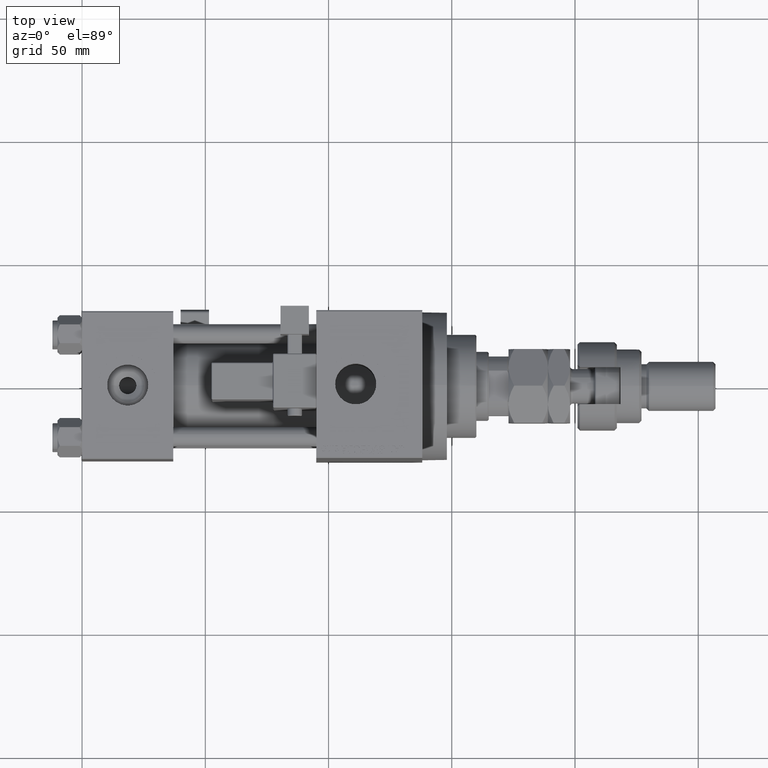
[diagram: clean part render]
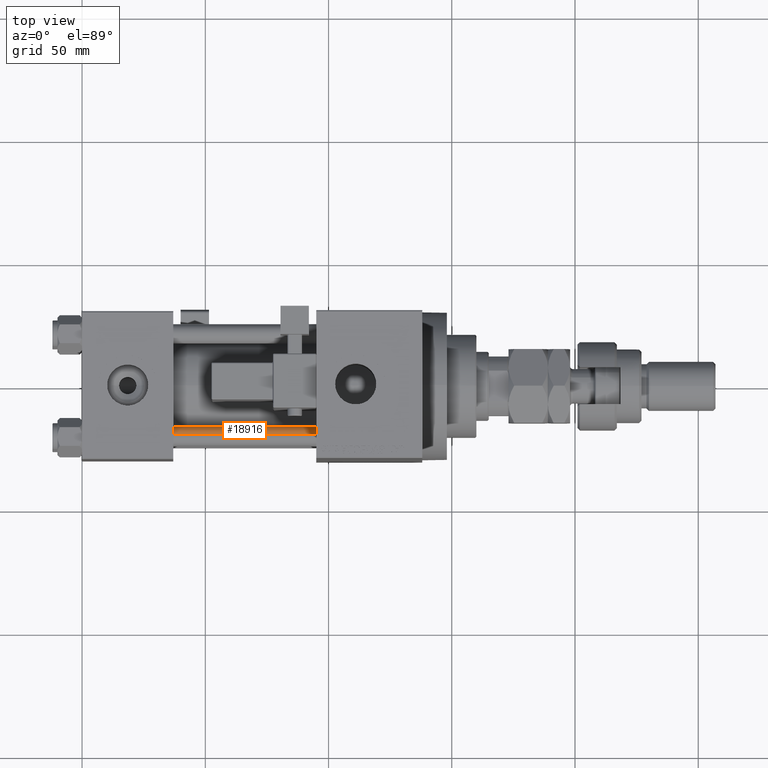
[diagram: same view with one face highlighted and labeled with its STEP entity id]
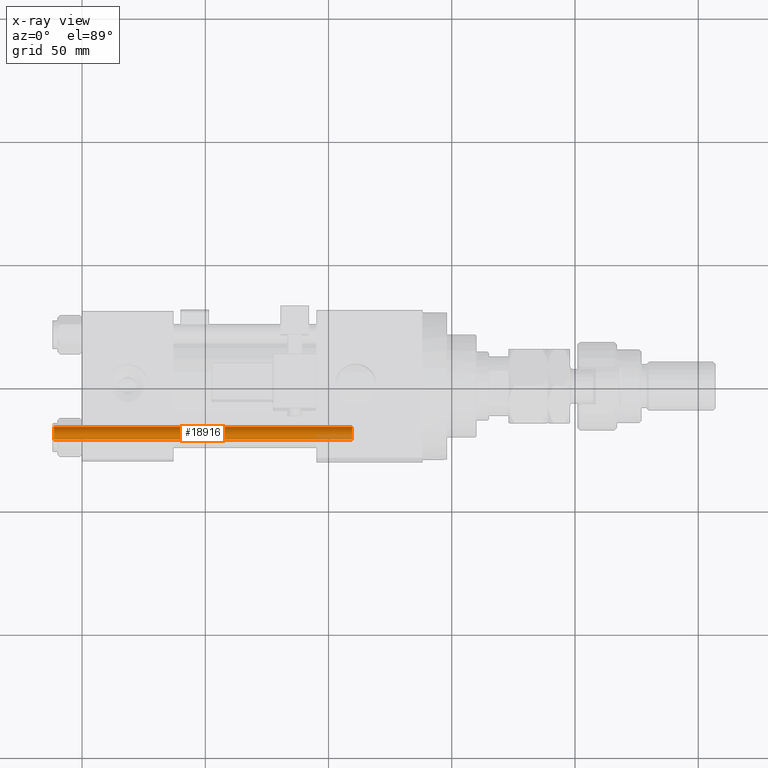
[diagram: x-ray of the same camera — body ghosted, the highlighted face saturated]
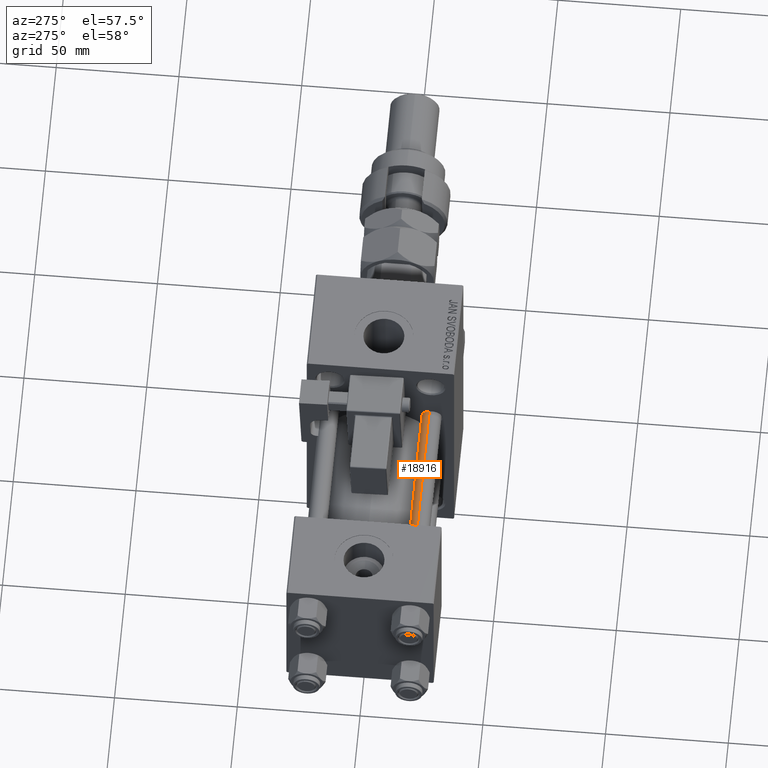
[diagram: same view with one face highlighted and labeled with its STEP entity id]
A machine part, top view. The second image highlights one B-rep face of the part: STEP entity #18916.
The next image is the same camera in x-ray: the body ghosted, the highlighted face saturated — about 5% of this face is hidden behind the body in this view.
A second angle (auxiliary view) of the same face is appended — the face is thin or edge-on in the first view.
In plain terms, the highlighted cylindrical surface (edge-blend (fillet) strip) has radius 4 mm, axis along (1, 0, 0).
Its self-contained STEP definition (entity closure, byte-faithful):
#614 = CYLINDRICAL_SURFACE ( 'NONE', #17882, 4.000000000000000000 ) ;
#790 = CARTESIAN_POINT ( 'NONE',  ( 4.000000000000000000, 4.898587196589411843E-16, 0.5000000000000559552 ) ) ;
#903 = CIRCLE ( 'NONE', #45907, 4.000000000000000000 ) ;
#2013 = DIRECTION ( 'NONE',  ( -0.000000000000000000, -0.000000000000000000, 1.000000000000000000 ) ) ;
#2686 = CARTESIAN_POINT ( 'NONE',  ( -4.000000000000000000, 0.000000000000000000, 0.5000000000000559552 ) ) ;
#4331 = CARTESIAN_POINT ( 'NONE',  ( 0.000000000000000000, 0.000000000000000000, 122.0000000000000000 ) ) ;
#4584 = EDGE_LOOP ( 'NONE', ( #32570, #41009, #35175, #15258 ) ) ;
#7799 = DIRECTION ( 'NONE',  ( -1.000000000000000000, 0.000000000000000000, 0.000000000000000000 ) ) ;
#9418 = VECTOR ( 'NONE', #39668, 1000.000000000000000 ) ;
#10508 = CARTESIAN_POINT ( 'NONE',  ( 0.000000000000000000, 0.000000000000000000, 0.5000000000000559552 ) ) ;
#14733 = LINE ( 'NONE', #31414, #9418 ) ;
#14858 = DIRECTION ( 'NONE',  ( -0.000000000000000000, -0.000000000000000000, -1.000000000000000000 ) ) ;
#15188 = CARTESIAN_POINT ( 'NONE',  ( 0.000000000000000000, 0.000000000000000000, 121.5000000000000426 ) ) ;
#15258 = ORIENTED_EDGE ( 'NONE', *, *, #45467, .T. ) ;
#16763 = VERTEX_POINT ( 'NONE', #36077 ) ;
#17882 = AXIS2_PLACEMENT_3D ( 'NONE', #4331, #29010, #7799 ) ;
#18636 = DIRECTION ( 'NONE',  ( 0.000000000000000000, 0.000000000000000000, -1.000000000000000000 ) ) ;
#18916 = ADVANCED_FACE ( 'NONE', ( #36992 ), #614, .T. ) ;
#19289 = EDGE_CURVE ( 'NONE', #44146, #16763, #903, .T. ) ;
#21392 = VERTEX_POINT ( 'NONE', #2686 ) ;
#26239 = CIRCLE ( 'NONE', #33008, 4.000000000000000000 ) ;
#26611 = DIRECTION ( 'NONE',  ( 1.000000000000000000, 0.000000000000000000, 0.000000000000000000 ) ) ;
#27757 = VECTOR ( 'NONE', #14858, 1000.000000000000000 ) ;
#29010 = DIRECTION ( 'NONE',  ( -0.000000000000000000, -0.000000000000000000, -1.000000000000000000 ) ) ;
#31290 = LINE ( 'NONE', #38244, #27757 ) ;
#31414 = CARTESIAN_POINT ( 'NONE',  ( 4.000000000000000000, 4.898587196589411843E-16, 122.0000000000000000 ) ) ;
#32570 = ORIENTED_EDGE ( 'NONE', *, *, #48007, .F. ) ;
#33008 = AXIS2_PLACEMENT_3D ( 'NONE', #10508, #2013, #42907 ) ;
#34132 = VERTEX_POINT ( 'NONE', #790 ) ;
#35175 = ORIENTED_EDGE ( 'NONE', *, *, #36331, .T. ) ;
#36077 = CARTESIAN_POINT ( 'NONE',  ( -4.000000000000000000, 0.000000000000000000, 121.5000000000000426 ) ) ;
#36331 = EDGE_CURVE ( 'NONE', #16763, #21392, #31290, .T. ) ;
#36992 = FACE_OUTER_BOUND ( 'NONE', #4584, .T. ) ;
#38244 = CARTESIAN_POINT ( 'NONE',  ( -4.000000000000000000, 0.000000000000000000, 122.0000000000000000 ) ) ;
#39668 = DIRECTION ( 'NONE',  ( -0.000000000000000000, -0.000000000000000000, -1.000000000000000000 ) ) ;
#41009 = ORIENTED_EDGE ( 'NONE', *, *, #19289, .T. ) ;
#42503 = CARTESIAN_POINT ( 'NONE',  ( 4.000000000000000000, 4.898587196589411843E-16, 121.5000000000000426 ) ) ;
#42907 = DIRECTION ( 'NONE',  ( 1.000000000000000000, 0.000000000000000000, 0.000000000000000000 ) ) ;
#44146 = VERTEX_POINT ( 'NONE', #42503 ) ;
#45467 = EDGE_CURVE ( 'NONE', #21392, #34132, #26239, .T. ) ;
#45907 = AXIS2_PLACEMENT_3D ( 'NONE', #15188, #18636, #26611 ) ;
#48007 = EDGE_CURVE ( 'NONE', #44146, #34132, #14733, .T. ) ;